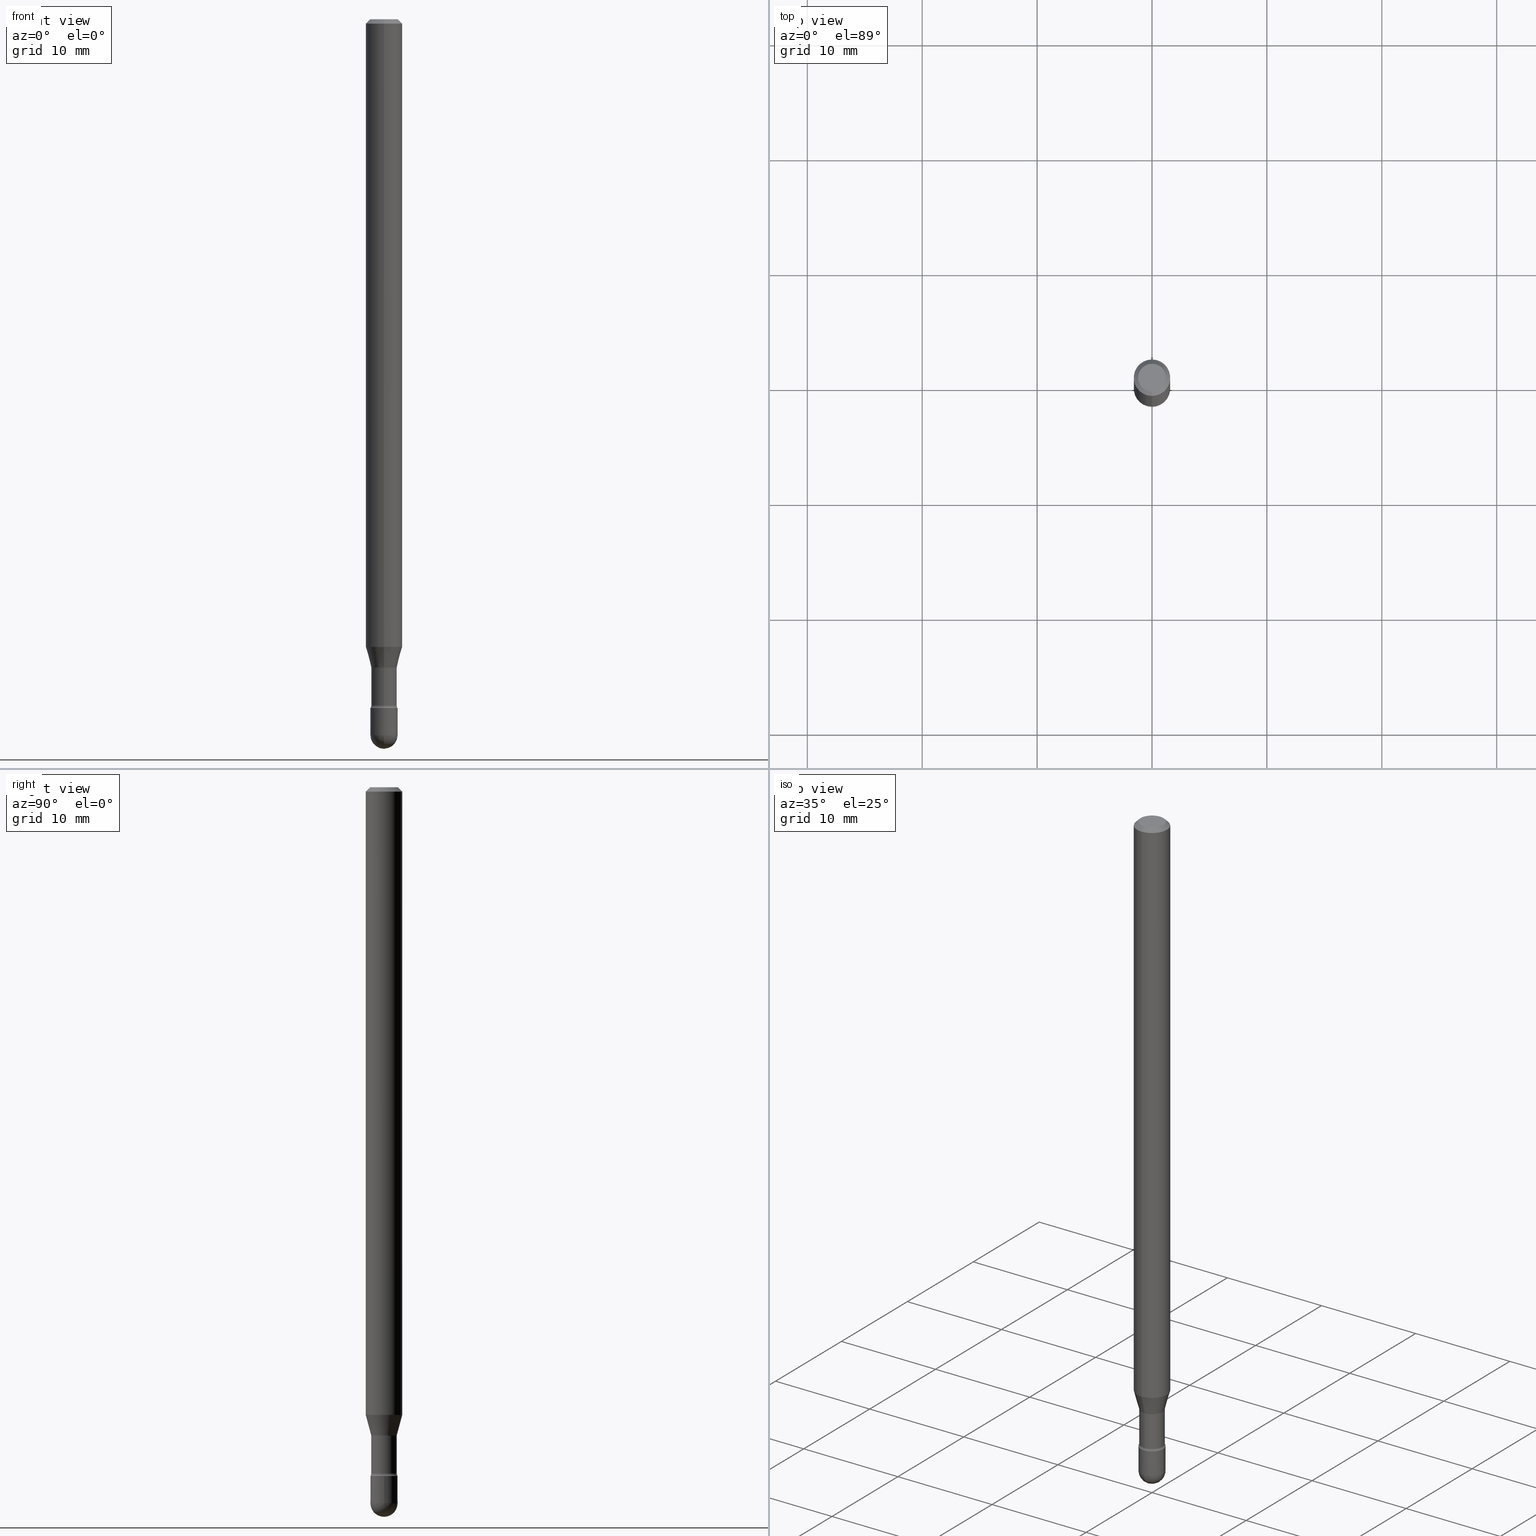
[diagram: canonical four-view strip — front | top / right | iso, engineering-drawing reading convention]
A machine part, canonical four-view strip (front | top / right | iso — engineering-drawing reading convention). The complete STEP part file that produces these views, byte-faithful:
ISO-10303-21;
HEADER;
FILE_DESCRIPTION (( 'STEP AP203' ),
    '1' );
FILE_NAME ('03826.STEP',
    '2024-04-09T20:37:51',
    ( '' ),
    ( '' ),
    'SwSTEP 2.0',
    'SolidWorks 2023',
    '' );
FILE_SCHEMA (( 'CONFIG_CONTROL_DESIGN' ));
ENDSEC;

DATA;
#1 = EDGE_CURVE ( 'NONE', #100, #345, #444, .T. ) ;
#2 = DIRECTION ( 'NONE',  ( -2.445467540314432280E-29, 3.491483151642043076E-15, 1.000000000000000000 ) ) ;
#3 = CARTESIAN_POINT ( 'NONE',  ( 0.04649999999999999967, -8.564603724182234141E-15, -2.359999999999999876 ) ) ;
#4 = VERTEX_POINT ( 'NONE', #102 ) ;
#5 = AXIS2_PLACEMENT_3D ( 'NONE', #516, #85, #255 ) ;
#6 = LOCAL_TIME ( 16, 37, 51.00000000000000000, #280 ) ;
#7 = CARTESIAN_POINT ( 'NONE',  ( 4.170885858912331081E-16, 0.05869999999999224449, -2.222974787463811275 ) ) ;
#8 = CARTESIAN_POINT ( 'NONE',  ( 3.668201310471668669E-31, -5.237224727463093505E-17, -0.01500000000000008271 ) ) ;
#9 = CARTESIAN_POINT ( 'NONE',  ( 6.115660277085183893E-29, -8.725856043299847054E-15, -2.500000000000000000 ) ) ;
#10 = EDGE_LOOP ( 'NONE', ( #402, #564, #320, #556 ) ) ;
#11 = ORIENTED_EDGE ( 'NONE', *, *, #428, .T. ) ;
#12 = FACE_OUTER_BOUND ( 'NONE', #163, .T. ) ;
#13 = CARTESIAN_POINT ( 'NONE',  ( 5.999957715975233376E-29, -8.566349464851658011E-15, -2.453500000000000014 ) ) ;
#14 = VERTEX_POINT ( 'NONE', #181 ) ;
#15 = CIRCLE ( 'NONE', #553, 0.04649999999999999967 ) ;
#16 = PRODUCT_DEFINITION_SHAPE ( 'NONE', 'NONE',  #522 ) ;
#17 = FACE_OUTER_BOUND ( 'NONE', #312, .T. ) ;
#18 = ADVANCED_FACE ( 'NONE', ( #272 ), #229, .T. ) ;
#19 = DIRECTION ( 'NONE',  ( -6.982962677686266711E-15, -1.000000000000000000, 5.874941921858630857E-15 ) ) ;
#20 = ORIENTED_EDGE ( 'NONE', *, *, #551, .T. ) ;
#21 = EDGE_LOOP ( 'NONE', ( #313, #238, #489, #165, #503 ) ) ;
#22 = ORIENTED_EDGE ( 'NONE', *, *, #259, .T. ) ;
#23 = VERTEX_POINT ( 'NONE', #236 ) ;
#24 = ORIENTED_EDGE ( 'NONE', *, *, #409, .T. ) ;
#25 = ORIENTED_EDGE ( 'NONE', *, *, #138, .F. ) ;
#26 = AXIS2_PLACEMENT_3D ( 'NONE', #7, #43, #270 ) ;
#27 = AXIS2_PLACEMENT_3D ( 'NONE', #96, #178, #134 ) ;
#28 = CALENDAR_DATE ( 2024, 9, 4 ) ;
#29 = CARTESIAN_POINT ( 'NONE',  ( 0.000000000000000000, 0.000000000000000000, 0.000000000000000000 ) ) ;
#30 = DIRECTION ( 'NONE',  ( 1.839019923739600315E-15, 0.2588190451025249583, 0.9659258262890670910 ) ) ;
#31 = PERSON_AND_ORGANIZATION_ROLE ( 'classification_officer' ) ;
#32 = CARTESIAN_POINT ( 'NONE',  ( 5.999957715975233376E-29, -8.566349464851658011E-15, -2.453500000000000014 ) ) ;
#33 = ADVANCED_FACE ( 'NONE', ( #17 ), #310, .F. ) ;
#34 = DIRECTION ( 'NONE',  ( 2.445467540314432280E-29, -3.491483151642043076E-15, -1.000000000000000000 ) ) ;
#35 = COORDINATED_UNIVERSAL_TIME_OFFSET ( 5, 0, .BEHIND. ) ;
#36 = CARTESIAN_POINT ( 'NONE',  ( 5.749961874035678454E-29, -8.209430170231729994E-15, -2.351273030308291379 ) ) ;
#37 = AXIS2_PLACEMENT_3D ( 'NONE', #32, #419, #332 ) ;
#38 = EDGE_LOOP ( 'NONE', ( #116, #108, #441, #440 ) ) ;
#39 = FACE_OUTER_BOUND ( 'NONE', #110, .T. ) ;
#40 = DIRECTION ( 'NONE',  ( -2.445467540314432280E-29, 3.491483151642042681E-15, 1.000000000000000000 ) ) ;
#41 = CARTESIAN_POINT ( 'NONE',  ( 3.791140294342164114E-16, 0.04421111260565621648, -2.219092501787273353 ) ) ;
#42 = EDGE_CURVE ( 'NONE', #487, #183, #482, .T. ) ;
#43 = DIRECTION ( 'NONE',  ( 1.000000000000000000, -7.105427357601001070E-15, 4.926315530742466020E-29 ) ) ;
#44 = DIRECTION ( 'NONE',  ( -6.982962677686265922E-15, -1.000000000000000000, 4.370956789862821150E-15 ) ) ;
#45 = DIRECTION ( 'NONE',  ( -2.445467540314432280E-29, 3.491483151642042681E-15, 1.000000000000000000 ) ) ;
#46 = ORIENTED_EDGE ( 'NONE', *, *, #466, .F. ) ;
#47 = AXIS2_PLACEMENT_3D ( 'NONE', #532, #93, #307 ) ;
#48 = EDGE_CURVE ( 'NONE', #528, #487, #67, .T. ) ;
#49 = CARTESIAN_POINT ( 'NONE',  ( 0.000000000000000000, 0.000000000000000000, 0.000000000000000000 ) ) ;
#50 = EDGE_LOOP ( 'NONE', ( #54, #400, #186, #323 ) ) ;
#51 = CARTESIAN_POINT ( 'NONE',  ( -0.04649999999999999967, -8.072720340132295025E-15, -2.359999999999999876 ) ) ;
#52 = DIRECTION ( 'NONE',  ( 1.000000000000000000, -6.982962677686280121E-15, 0.000000000000000000 ) ) ;
#53 = EDGE_LOOP ( 'NONE', ( #271, #296, #24, #443 ) ) ;
#54 = ORIENTED_EDGE ( 'NONE', *, *, #318, .T. ) ;
#55 = ORIENTED_EDGE ( 'NONE', *, *, #358, .F. ) ;
#56 = CIRCLE ( 'NONE', #26, 0.01500000000000002720 ) ;
#57 = ORIENTED_EDGE ( 'NONE', *, *, #1, .T. ) ;
#58 = CIRCLE ( 'NONE', #80, 0.01500000000000002720 ) ;
#59 = CYLINDRICAL_SURFACE ( 'NONE', #420, 0.04649999999999999967 ) ;
#60 = LINE ( 'NONE', #235, #401 ) ;
#61 = DIRECTION ( 'NONE',  ( 1.000000000000000000, -6.982962677686280121E-15, 0.000000000000000000 ) ) ;
#62 = CARTESIAN_POINT ( 'NONE',  ( 2.023543652350205589E-45, -2.889104343326665889E-31, -8.274694596359777069E-17 ) ) ;
#63 = VERTEX_POINT ( 'NONE', #496 ) ;
#64 = LENGTH_MEASURE_WITH_UNIT ( LENGTH_MEASURE( 0.02539999999999999897 ), #185 );
#65 = CALENDAR_DATE ( 2024, 9, 4 ) ;
#66 = ORIENTED_EDGE ( 'NONE', *, *, #121, .T. ) ;
#67 = CIRCLE ( 'NONE', #491, 0.04649999999999999967 ) ;
#68 = CIRCLE ( 'NONE', #292, 0.04649999999999995109 ) ;
#69 = ADVANCED_FACE ( 'NONE', ( #477 ), #537, .T. ) ;
#70 = LINE ( 'NONE', #506, #133 ) ;
#71 = ORIENTED_EDGE ( 'NONE', *, *, #299, .F. ) ;
#72 = LINE ( 'NONE', #243, #430 ) ;
#73 = PERSON_AND_ORGANIZATION_ROLE ( 'design_owner' ) ;
#74 = DIRECTION ( 'NONE',  ( -2.445467540314432280E-29, 3.491483151642043076E-15, 1.000000000000000000 ) ) ;
#75 = DATE_AND_TIME ( #65, #6 ) ;
#76 = PERSON_AND_ORGANIZATION_ROLE ( 'creator' ) ;
#77 = DIRECTION ( 'NONE',  ( -2.445467540314432280E-29, 3.491483151642043076E-15, 1.000000000000000000 ) ) ;
#78 = EDGE_CURVE ( 'NONE', #359, #63, #530, .T. ) ;
#79 = CIRCLE ( 'NONE', #389, 0.04421111260566396722 ) ;
#80 = AXIS2_PLACEMENT_3D ( 'NONE', #203, #546, #509 ) ;
#81 = APPROVAL_STATUS ( 'not_yet_approved' ) ;
#82 = CARTESIAN_POINT ( 'NONE',  ( -0.04649999999999999967, -8.072720340132295025E-15, -2.453500000000000014 ) ) ;
#83 = APPLICATION_PROTOCOL_DEFINITION ( 'international standard', 'config_control_design', 1994, #346 ) ;
#84 = VERTEX_POINT ( 'NONE', #319 ) ;
#85 = DIRECTION ( 'NONE',  ( -1.000000000000000000, 6.982962677686265922E-15, -4.883557194083111780E-29 ) ) ;
#86 = CC_DESIGN_DATE_AND_TIME_ASSIGNMENT ( #370, #462, ( #354 ) ) ;
#87 = DIRECTION ( 'NONE',  ( 1.000000000000000000, -6.982962677686260400E-15, 0.000000000000000000 ) ) ;
#88 = CIRCLE ( 'NONE', #145, 0.01499999999999999424 ) ;
#89 = ADVANCED_FACE ( 'NONE', ( #104 ), #380, .F. ) ;
#90 = CARTESIAN_POINT ( 'NONE',  ( 5.259803155794532957E-29, -7.509612700501841428E-15, -2.150837444817705446 ) ) ;
#91 = DIRECTION ( 'NONE',  ( -2.445467540314432280E-29, 3.491483151642042681E-15, 1.000000000000000000 ) ) ;
#92 = DIRECTION ( 'NONE',  ( -2.445467540314432280E-29, 3.491483151642043076E-15, 1.000000000000000000 ) ) ;
#93 = DIRECTION ( 'NONE',  ( -2.445468806185136597E-29, 3.491481338843145583E-15, 1.000000000000000000 ) ) ;
#94 = CARTESIAN_POINT ( 'NONE',  ( 5.426718682075923178E-29, -7.747924081925454793E-15, -2.219092501787273353 ) ) ;
#95 = DIRECTION ( 'NONE',  ( -6.982962677686265922E-15, -1.000000000000000000, 3.491483151642043076E-15 ) ) ;
#96 = CARTESIAN_POINT ( 'NONE',  ( 5.426718682075923178E-29, -7.747924081925454793E-15, -2.219092501787273353 ) ) ;
#97 = LINE ( 'NONE', #268, #467 ) ;
#98 = CARTESIAN_POINT ( 'NONE',  ( 0.04649999999999999967, -3.247077645124114474E-16, 2.267422200745110326E-30 ) ) ;
#99 = ORIENTED_EDGE ( 'NONE', *, *, #300, .T. ) ;
#100 = VERTEX_POINT ( 'NONE', #266 ) ;
#101 = CARTESIAN_POINT ( 'NONE',  ( 3.840629472727447874E-16, 0.04749999999999999362, -2.485923956665947867E-16 ) ) ;
#102 = CARTESIAN_POINT ( 'NONE',  ( -3.051554690148354365E-16, -0.04370000000000775348, -2.222974787463810831 ) ) ;
#103 = ADVANCED_FACE ( 'NONE', ( #435 ), #59, .T. ) ;
#104 = FACE_OUTER_BOUND ( 'NONE', #135, .T. ) ;
#105 = CIRCLE ( 'NONE', #239, 0.04421111260566396722 ) ;
#106 = CIRCLE ( 'NONE', #493, 0.06250000000000000000 ) ;
#107 = CARTESIAN_POINT ( 'NONE',  ( 5.771303395142059856E-29, -8.239900237875220901E-15, -2.359999999999999876 ) ) ;
#108 = ORIENTED_EDGE ( 'NONE', *, *, #358, .T. ) ;
#109 = DIRECTION ( 'NONE',  ( -6.982962677686266711E-15, -1.000000000000000000, 6.251368406554378572E-15 ) ) ;
#110 = EDGE_LOOP ( 'NONE', ( #226, #542, #483, #279 ) ) ;
#111 = EDGE_CURVE ( 'NONE', #241, #84, #79, .T. ) ;
#112 = DIRECTION ( 'NONE',  ( -2.445467540314432280E-29, 3.491483151642043076E-15, 1.000000000000000000 ) ) ;
#113 = VERTEX_POINT ( 'NONE', #101 ) ;
#114 = CONICAL_SURFACE ( 'NONE', #429, 0.06250000000000000000, 0.7853981633974483900 ) ;
#115 = DATE_AND_TIME ( #117, #415 ) ;
#116 = ORIENTED_EDGE ( 'NONE', *, *, #449, .F. ) ;
#117 = CALENDAR_DATE ( 2024, 9, 4 ) ;
#118 = EDGE_CURVE ( 'NONE', #241, #14, #56, .T. ) ;
#119 = PERSON_AND_ORGANIZATION ( #127, #510 ) ;
#120 = AXIS2_PLACEMENT_3D ( 'NONE', #151, #327, #109 ) ;
#121 = EDGE_CURVE ( 'NONE', #84, #241, #105, .T. ) ;
#122 = DIRECTION ( 'NONE',  ( -6.982962677686266711E-15, -1.000000000000000000, 6.179098042681425901E-15 ) ) ;
#123 = AXIS2_PLACEMENT_3D ( 'NONE', #62, #237, #502 ) ;
#124 = DIRECTION ( 'NONE',  ( 1.000000000000000000, -6.982962677686280121E-15, 0.000000000000000000 ) ) ;
#125 = ADVANCED_FACE ( 'NONE', ( #392 ), #131, .F. ) ;
#126 = DIRECTION ( 'NONE',  ( -6.982962677686266711E-15, -1.000000000000000000, 6.251368406554378572E-15 ) ) ;
#127 = PERSON ( 'UNSPECIFIED', 'UNSPECIFIED', 'UNSPECIFIED', ('UNSPECIFIED'), ('UNSPECIFIED'), ('UNSPECIFIED') ) ;
#128 = DIRECTION ( 'NONE',  ( -6.982962677686265922E-15, -1.000000000000000000, 4.370956789862821150E-15 ) ) ;
#129 = ORIENTED_EDGE ( 'NONE', *, *, #412, .T. ) ;
#130 = CARTESIAN_POINT ( 'NONE',  ( 0.000000000000000000, 0.000000000000000000, 0.000000000000000000 ) ) ;
#131 = TOROIDAL_SURFACE ( 'NONE', #371, 0.05870000000000000911, 0.01499999999999999771 ) ;
#132 = DIRECTION ( 'NONE',  ( 6.982962677686265922E-15, 1.000000000000000000, -3.491483151642042681E-15 ) ) ;
#133 = VECTOR ( 'NONE', #450, 39.37007874015748143 ) ;
#134 = DIRECTION ( 'NONE',  ( -6.982962677686266711E-15, -1.000000000000000000, 6.179098042681425901E-15 ) ) ;
#135 = EDGE_LOOP ( 'NONE', ( #210, #336, #234, #179 ) ) ;
#136 = ORIENTED_EDGE ( 'NONE', *, *, #551, .F. ) ;
#137 = EDGE_LOOP ( 'NONE', ( #57, #11, #534, #410, #324 ) ) ;
#138 = EDGE_CURVE ( 'NONE', #143, #359, #260, .T. ) ;
#139 = ORIENTED_EDGE ( 'NONE', *, *, #498, .T. ) ;
#140 = DIRECTION ( 'NONE',  ( -2.445467540314432280E-29, 3.491483151642043076E-15, 1.000000000000000000 ) ) ;
#141 = ORIENTED_EDGE ( 'NONE', *, *, #164, .T. ) ;
#142 = ORIENTED_EDGE ( 'NONE', *, *, #484, .T. ) ;
#143 = VERTEX_POINT ( 'NONE', #265 ) ;
#144 = VECTOR ( 'NONE', #91, 39.37007874015748143 ) ;
#145 = AXIS2_PLACEMENT_3D ( 'NONE', #514, #290, #423 ) ;
#146 = ORIENTED_EDGE ( 'NONE', *, *, #405, .T. ) ;
#147 = LOCAL_TIME ( 16, 37, 51.00000000000000000, #35 ) ;
#148 = APPROVAL ( #334, 'UNSPECIFIED' ) ;
#149 = VERTEX_POINT ( 'NONE', #51 ) ;
#150 = SHAPE_DEFINITION_REPRESENTATION ( #16, #173 ) ;
#151 = CARTESIAN_POINT ( 'NONE',  ( 5.436212685680124497E-29, -7.761479016954948224E-15, -2.222974787463811275 ) ) ;
#152 = PERSON_AND_ORGANIZATION ( #127, #510 ) ;
#153 = DIRECTION ( 'NONE',  ( -2.445467540314432280E-29, 3.491483151642043076E-15, 1.000000000000000000 ) ) ;
#154 = AXIS2_PLACEMENT_3D ( 'NONE', #301, #92, #432 ) ;
#155 = PERSON_AND_ORGANIZATION_ROLE ( 'creator' ) ;
#156 = DIRECTION ( 'NONE',  ( 1.000000000000000000, -6.982962677686280121E-15, 0.000000000000000000 ) ) ;
#157 = DIRECTION ( 'NONE',  ( -2.445467540314432280E-29, 3.491483151642042681E-15, 1.000000000000000000 ) ) ;
#158 = SPHERICAL_SURFACE ( 'NONE', #5, 0.04649999999999995109 ) ;
#159 = CARTESIAN_POINT ( 'NONE',  ( 4.170885858912363128E-16, 0.05869999999999180040, -2.351273030308291823 ) ) ;
#160 = AXIS2_PLACEMENT_3D ( 'NONE', #269, #140, #366 ) ;
#161 = CIRCLE ( 'NONE', #413, 0.04649999999999999967 ) ;
#162 = DIRECTION ( 'NONE',  ( -2.445467540314432280E-29, 3.491483151642043076E-15, 1.000000000000000000 ) ) ;
#163 = EDGE_LOOP ( 'NONE', ( #66, #361, #437, #396 ) ) ;
#164 = EDGE_CURVE ( 'NONE', #14, #4, #284, .T. ) ;
#165 = ORIENTED_EDGE ( 'NONE', *, *, #42, .T. ) ;
#166 = AXIS2_PLACEMENT_3D ( 'NONE', #355, #403, #439 ) ;
#167 = AXIS2_PLACEMENT_3D ( 'NONE', #227, #527, #126 ) ;
#168 = CARTESIAN_POINT ( 'NONE',  ( 5.999957715975233376E-29, -8.566349464851658011E-15, -2.453500000000000014 ) ) ;
#169 = VECTOR ( 'NONE', #397, 39.37007874015748143 ) ;
#170 = APPROVAL_PERSON_ORGANIZATION ( #417, #177, #555 ) ;
#171 = EDGE_LOOP ( 'NONE', ( #486, #20, #146, #291 ) ) ;
#172 = CYLINDRICAL_SURFACE ( 'NONE', #455, 0.06250000000000000000 ) ;
#173 = ADVANCED_BREP_SHAPE_REPRESENTATION ( '03826', ( #311, #504, #298 ), #182 ) ;
#174 = DIRECTION ( 'NONE',  ( 2.445467540314432280E-29, -3.491483151642043076E-15, -1.000000000000000000 ) ) ;
#175 = FACE_OUTER_BOUND ( 'NONE', #137, .T. ) ;
#176 = CARTESIAN_POINT ( 'NONE',  ( 4.440892098501153712E-16, 0.06249999999999251293, -2.150837444817705890 ) ) ;
#177 = APPROVAL ( #372, 'UNSPECIFIED' ) ;
#178 = DIRECTION ( 'NONE',  ( -2.445467540314432280E-29, 3.491483151642043076E-15, 1.000000000000000000 ) ) ;
#179 = ORIENTED_EDGE ( 'NONE', *, *, #479, .T. ) ;
#180 = AXIS2_PLACEMENT_3D ( 'NONE', #247, #375, #156 ) ;
#181 = CARTESIAN_POINT ( 'NONE',  ( 3.105071755272212396E-16, 0.04369999999999223117, -2.222974787463811275 ) ) ;
#182 =( GEOMETRIC_REPRESENTATION_CONTEXT ( 3 ) GLOBAL_UNCERTAINTY_ASSIGNED_CONTEXT ( ( #431 ) ) GLOBAL_UNIT_ASSIGNED_CONTEXT ( ( #411, #329, #446 ) ) REPRESENTATION_CONTEXT ( 'NONE', 'WORKASPACE' ) );
#183 = VERTEX_POINT ( 'NONE', #3 ) ;
#184 = EDGE_CURVE ( 'NONE', #345, #528, #461, .T. ) ;
#185 =( LENGTH_UNIT ( ) NAMED_UNIT ( * ) SI_UNIT ( $, .METRE. ) );
#186 = ORIENTED_EDGE ( 'NONE', *, *, #479, .F. ) ;
#187 = DIRECTION ( 'NONE',  ( 2.445467540314432280E-29, -3.491483151642042681E-15, -1.000000000000000000 ) ) ;
#188 = DIMENSIONAL_EXPONENTS ( 1.000000000000000000, 0.000000000000000000, 0.000000000000000000, 0.000000000000000000, 0.000000000000000000, 0.000000000000000000, 0.000000000000000000 ) ;
#189 = CARTESIAN_POINT ( 'NONE',  ( 5.771306382596922099E-29, -8.239895959669823433E-15, -2.359999999999999876 ) ) ;
#190 = CARTESIAN_POINT ( 'NONE',  ( 5.436215499678784243E-29, -7.761474987148704232E-15, -2.222974787463811275 ) ) ;
#191 = CARTESIAN_POINT ( 'NONE',  ( 3.105071755271637513E-16, 0.04370000000000000273, 3.254955851644887597E-16 ) ) ;
#192 = EDGE_LOOP ( 'NONE', ( #282, #533, #141, #46 ) ) ;
#193 = ORIENTED_EDGE ( 'NONE', *, *, #512, .F. ) ;
#194 = DIRECTION ( 'NONE',  ( -2.445467540314432280E-29, 3.491483151642043076E-15, 1.000000000000000000 ) ) ;
#195 = AXIS2_PLACEMENT_3D ( 'NONE', #36, #456, #494 ) ;
#196 = EDGE_LOOP ( 'NONE', ( #71, #317 ) ) ;
#197 = CC_DESIGN_SECURITY_CLASSIFICATION ( #354, ( #367 ) ) ;
#198 = DIRECTION ( 'NONE',  ( 1.000000000000000000, 0.000000000000000000, 0.000000000000000000 ) ) ;
#199 = DIRECTION ( 'NONE',  ( -6.982962677686265922E-15, -1.000000000000000000, 3.491483151642043076E-15 ) ) ;
#200 = EDGE_LOOP ( 'NONE', ( #55, #308, #387, #526 ) ) ;
#201 = AXIS2_PLACEMENT_3D ( 'NONE', #190, #545, #95 ) ;
#202 = EDGE_CURVE ( 'NONE', #360, #63, #97, .T. ) ;
#203 = CARTESIAN_POINT ( 'NONE',  ( -4.098999091801294470E-16, -0.05870000000000776680, -2.222974787463810831 ) ) ;
#204 = CARTESIAN_POINT ( 'NONE',  ( 5.999957715975233376E-29, -8.566349464851658011E-15, -2.453500000000000014 ) ) ;
#205 = ORIENTED_EDGE ( 'NONE', *, *, #78, .T. ) ;
#206 = CC_DESIGN_PERSON_AND_ORGANIZATION_ASSIGNMENT ( #459, #76, ( #522 ) ) ;
#207 = AXIS2_PLACEMENT_3D ( 'NONE', #130, #481, #224 ) ;
#208 = APPROVAL_PERSON_ORGANIZATION ( #508, #379, #554 ) ;
#209 = CARTESIAN_POINT ( 'NONE',  ( 5.749964850443325781E-29, -8.209425907846573526E-15, -2.351273030308291379 ) ) ;
#210 = ORIENTED_EDGE ( 'NONE', *, *, #118, .F. ) ;
#211 = CC_DESIGN_DATE_AND_TIME_ASSIGNMENT ( #115, #288, ( #522 ) ) ;
#212 = DIRECTION ( 'NONE',  ( 7.105427357601001859E-15, 1.000000000000000000, 0.000000000000000000 ) ) ;
#213 = DIRECTION ( 'NONE',  ( -6.982962677686265922E-15, -1.000000000000000000, 3.491483151642043076E-15 ) ) ;
#214 = DIRECTION ( 'NONE',  ( -1.000000000000000000, 7.105427357601001070E-15, -4.926315508542082329E-29 ) ) ;
#215 = AXIS2_PLACEMENT_3D ( 'NONE', #168, #344, #124 ) ;
#216 = TOROIDAL_SURFACE ( 'NONE', #340, 0.05870000000000000218, 0.01500000000000003240 ) ;
#217 = CARTESIAN_POINT ( 'NONE',  ( 5.426718682075923178E-29, -7.747924081925454793E-15, -2.219092501787273353 ) ) ;
#218 = VERTEX_POINT ( 'NONE', #434 ) ;
#219 = DIRECTION ( 'NONE',  ( -6.982962677686266711E-15, -1.000000000000000000, 3.491483151642043076E-15 ) ) ;
#220 = EDGE_CURVE ( 'NONE', #113, #218, #562, .T. ) ;
#221 = VERTEX_POINT ( 'NONE', #395 ) ;
#222 = CARTESIAN_POINT ( 'NONE',  ( -1.169113584055446105E-44, 1.669184350826100908E-30, 4.780733988912460139E-16 ) ) ;
#223 = VERTEX_POINT ( 'NONE', #9 ) ;
#224 = DIRECTION ( 'NONE',  ( 1.000000000000000000, -6.982962677686267499E-15, 4.876176775795936353E-29 ) ) ;
#225 = ADVANCED_FACE ( 'NONE', ( #175 ), #350, .T. ) ;
#226 = ORIENTED_EDGE ( 'NONE', *, *, #202, .F. ) ;
#227 = CARTESIAN_POINT ( 'NONE',  ( 5.436212685680124497E-29, -7.761479016954948224E-15, -2.222974787463811275 ) ) ;
#228 = CLOSED_SHELL ( 'NONE', ( #225, #460, #18, #262, #103 ) ) ;
#229 = PLANE ( 'NONE',  #166 ) ;
#230 = TOROIDAL_SURFACE ( 'NONE', #433, 0.05870000000000000911, 0.01499999999999999771 ) ;
#231 = CC_DESIGN_APPROVAL ( #177, ( #522 ) ) ;
#232 = VERTEX_POINT ( 'NONE', #399 ) ;
#233 = DIRECTION ( 'NONE',  ( -6.982962677686266711E-15, -1.000000000000000000, 6.179098042681425901E-15 ) ) ;
#234 = ORIENTED_EDGE ( 'NONE', *, *, #466, .T. ) ;
#235 = CARTESIAN_POINT ( 'NONE',  ( -4.287811248607203282E-16, -0.06250000000000005551, -0.01499999999999986587 ) ) ;
#236 = CARTESIAN_POINT ( 'NONE',  ( -3.051554690148324289E-16, -0.04370000000000823226, -2.351273030308290934 ) ) ;
#237 = DIRECTION ( 'NONE',  ( -2.445467540314432280E-29, 3.491483151642043076E-15, 1.000000000000000000 ) ) ;
#238 = ORIENTED_EDGE ( 'NONE', *, *, #184, .T. ) ;
#239 = AXIS2_PLACEMENT_3D ( 'NONE', #217, #348, #309 ) ;
#240 = CIRCLE ( 'NONE', #306, 0.04370000000000001661 ) ;
#241 = VERTEX_POINT ( 'NONE', #41 ) ;
#242 = LOCAL_TIME ( 16, 37, 51.00000000000000000, #287 ) ;
#243 = CARTESIAN_POINT ( 'NONE',  ( 3.141388490183175009E-16, 0.04421111260565621648, -2.219092501787273353 ) ) ;
#244 = CARTESIAN_POINT ( 'NONE',  ( 0.04649999999999999967, -8.727830476773153796E-15, -2.453500000000000014 ) ) ;
#245 = APPLICATION_PROTOCOL_DEFINITION ( 'international standard', 'config_control_design', 1994, #453 ) ;
#246 = ADVANCED_FACE ( 'NONE', ( #521 ), #114, .T. ) ;
#247 = CARTESIAN_POINT ( 'NONE',  ( 5.999957715975233376E-29, -8.566349464851658011E-15, -2.453500000000000014 ) ) ;
#248 = PERSON_AND_ORGANIZATION_ROLE ( 'design_supplier' ) ;
#249 = FACE_OUTER_BOUND ( 'NONE', #200, .T. ) ;
#250 = CIRCLE ( 'NONE', #123, 0.04749999999999999362 ) ;
#251 = CONICAL_SURFACE ( 'NONE', #27, 0.04421111260566396722, 0.2617993877991502960 ) ;
#252 = DATE_AND_TIME ( #549, #147 ) ;
#253 = DIRECTION ( 'NONE',  ( -2.445467540314432280E-29, 3.491483151642043076E-15, 1.000000000000000000 ) ) ;
#254 = EDGE_CURVE ( 'NONE', #487, #100, #351, .T. ) ;
#255 = DIRECTION ( 'NONE',  ( 6.982962677686265922E-15, 1.000000000000000000, -5.874941921858636379E-15 ) ) ;
#256 = CIRCLE ( 'NONE', #352, 0.04649999999999995109 ) ;
#257 = CC_DESIGN_PERSON_AND_ORGANIZATION_ASSIGNMENT ( #376, #155, ( #367 ) ) ;
#258 = CARTESIAN_POINT ( 'NONE',  ( 5.999957715975233376E-29, -8.566349464851658011E-15, -2.453500000000000014 ) ) ;
#259 = EDGE_CURVE ( 'NONE', #23, #408, #88, .T. ) ;
#260 = LINE ( 'NONE', #386, #144 ) ;
#261 = CARTESIAN_POINT ( 'NONE',  ( -1.169113584055446105E-44, 1.669184350826100908E-30, 4.780733988912460139E-16 ) ) ;
#262 = ADVANCED_FACE ( 'NONE', ( #338 ), #158, .T. ) ;
#263 = CONICAL_SURFACE ( 'NONE', #381, 0.06250000000000000000, 0.7853981633974483900 ) ;
#264 = CARTESIAN_POINT ( 'NONE',  ( -3.304023721283863841E-16, -0.04650000000000854145, -2.453500000000000014 ) ) ;
#265 = CARTESIAN_POINT ( 'NONE',  ( -4.364351673553387171E-16, -0.06250000000000748013, -2.150837444817705002 ) ) ;
#266 = CARTESIAN_POINT ( 'NONE',  ( 3.247077645124712036E-16, 0.04649999999999141626, -2.453500000000000458 ) ) ;
#267 = CARTESIAN_POINT ( 'NONE',  ( 4.364351673553919652E-16, 0.06249999999999995143, -0.01500000000000030129 ) ) ;
#268 = CARTESIAN_POINT ( 'NONE',  ( 4.440892098500625669E-16, 0.06250000000000000000, 2.598557019136183710E-16 ) ) ;
#269 = CARTESIAN_POINT ( 'NONE',  ( 3.668201310471668669E-31, -5.237224727463093505E-17, -0.01500000000000008271 ) ) ;
#270 = DIRECTION ( 'NONE',  ( 7.105427357601001859E-15, 1.000000000000000000, 0.000000000000000000 ) ) ;
#271 = ORIENTED_EDGE ( 'NONE', *, *, #342, .F. ) ;
#272 = FACE_OUTER_BOUND ( 'NONE', #465, .T. ) ;
#273 = CIRCLE ( 'NONE', #47, 0.04649999999999999967 ) ;
#274 = PRODUCT_RELATED_PRODUCT_CATEGORY ( 'detail', '', ( #382 ) ) ;
#275 = CC_DESIGN_APPROVAL ( #148, ( #354 ) ) ;
#276 = ORIENTED_EDGE ( 'NONE', *, *, #111, .T. ) ;
#277 = DIRECTION ( 'NONE',  ( -6.982962677686266711E-15, -1.000000000000000000, 5.874941921858630857E-15 ) ) ;
#278 = DIRECTION ( 'NONE',  ( -2.445468806185136597E-29, 3.491481338843145583E-15, 1.000000000000000000 ) ) ;
#279 = ORIENTED_EDGE ( 'NONE', *, *, #286, .F. ) ;
#280 = COORDINATED_UNIVERSAL_TIME_OFFSET ( 5, 0, .BEHIND. ) ;
#281 = FACE_OUTER_BOUND ( 'NONE', #53, .T. ) ;
#282 = ORIENTED_EDGE ( 'NONE', *, *, #111, .F. ) ;
#283 = CARTESIAN_POINT ( 'NONE',  ( -3.247077645123537126E-16, -0.04650000000000825001, -2.359999999999999876 ) ) ;
#284 = CIRCLE ( 'NONE', #167, 0.04369999999999999579 ) ;
#285 = AXIS2_PLACEMENT_3D ( 'NONE', #107, #112, #277 ) ;
#286 = EDGE_CURVE ( 'NONE', #63, #359, #445, .T. ) ;
#287 = COORDINATED_UNIVERSAL_TIME_OFFSET ( 5, 0, .BEHIND. ) ;
#288 = DATE_TIME_ROLE ( 'creation_date' ) ;
#289 = APPROVAL_DATE_TIME ( #513, #177 ) ;
#290 = DIRECTION ( 'NONE',  ( -1.000000000000000000, 6.982962677686265922E-15, -4.883557194083112340E-29 ) ) ;
#291 = ORIENTED_EDGE ( 'NONE', *, *, #259, .F. ) ;
#292 = AXIS2_PLACEMENT_3D ( 'NONE', #204, #559, #339 ) ;
#293 = FACE_OUTER_BOUND ( 'NONE', #192, .T. ) ;
#294 = CARTESIAN_POINT ( 'NONE',  ( 3.668201310471668669E-31, -5.237224727463093505E-17, -0.01500000000000008271 ) ) ;
#295 = DESIGN_CONTEXT ( 'detailed design', #346, 'design' ) ;
#296 = ORIENTED_EDGE ( 'NONE', *, *, #384, .T. ) ;
#297 = VECTOR ( 'NONE', #448, 39.37007874015748143 ) ;
#298 = AXIS2_PLACEMENT_3D ( 'NONE', #29, #547, #198 ) ;
#299 = EDGE_CURVE ( 'NONE', #408, #221, #161, .T. ) ;
#300 = EDGE_CURVE ( 'NONE', #84, #143, #557, .T. ) ;
#301 = CARTESIAN_POINT ( 'NONE',  ( -1.169113584055446105E-44, 1.669184350826100908E-30, 4.780733988912460139E-16 ) ) ;
#302 = ORIENTED_EDGE ( 'NONE', *, *, #426, .F. ) ;
#303 = CARTESIAN_POINT ( 'NONE',  ( 2.023543652350205589E-45, -2.889104343326665889E-31, -8.274694596359777069E-17 ) ) ;
#304 = ORIENTED_EDGE ( 'NONE', *, *, #220, .T. ) ;
#305 = EDGE_CURVE ( 'NONE', #149, #183, #15, .T. ) ;
#306 = AXIS2_PLACEMENT_3D ( 'NONE', #565, #385, #314 ) ;
#307 = DIRECTION ( 'NONE',  ( 1.000000000000000000, -6.982962677686260400E-15, 0.000000000000000000 ) ) ;
#308 = ORIENTED_EDGE ( 'NONE', *, *, #449, .T. ) ;
#309 = DIRECTION ( 'NONE',  ( -6.982962677686266711E-15, -1.000000000000000000, 6.179098042681425901E-15 ) ) ;
#310 = PLANE ( 'NONE',  #552 ) ;
#311 = MANIFOLD_SOLID_BREP ( 'Body-Move/Copy2[1]', #228 ) ;
#312 = EDGE_LOOP ( 'NONE', ( #304, #142 ) ) ;
#313 = ORIENTED_EDGE ( 'NONE', *, *, #428, .F. ) ;
#314 = DIRECTION ( 'NONE',  ( -6.982962677686265133E-15, -1.000000000000000000, 6.251368406554375417E-15 ) ) ;
#315 = ORIENTED_EDGE ( 'NONE', *, *, #202, .T. ) ;
#316 = DIRECTION ( 'NONE',  ( -2.445467540314432280E-29, 3.491483151642043076E-15, 1.000000000000000000 ) ) ;
#317 = ORIENTED_EDGE ( 'NONE', *, *, #405, .F. ) ;
#318 = EDGE_CURVE ( 'NONE', #23, #232, #240, .T. ) ;
#319 = CARTESIAN_POINT ( 'NONE',  ( -3.087245492642820257E-16, -0.04421111260567172491, -2.219092501787272909 ) ) ;
#320 = ORIENTED_EDGE ( 'NONE', *, *, #458, .T. ) ;
#321 = AXIS2_PLACEMENT_3D ( 'NONE', #538, #194, #529 ) ;
#322 = CIRCLE ( 'NONE', #333, 0.06250000000000000000 ) ;
#323 = ORIENTED_EDGE ( 'NONE', *, *, #409, .F. ) ;
#324 = ORIENTED_EDGE ( 'NONE', *, *, #254, .T. ) ;
#325 = DIRECTION ( 'NONE',  ( -2.445468806185136877E-29, 3.491481338843145188E-15, 1.000000000000000000 ) ) ;
#326 = EDGE_LOOP ( 'NONE', ( #136, #539, #22, #536 ) ) ;
#327 = DIRECTION ( 'NONE',  ( -2.445467540314432280E-29, 3.491483151642043076E-15, 1.000000000000000000 ) ) ;
#328 = ADVANCED_FACE ( 'NONE', ( #407 ), #347, .T. ) ;
#329 =( NAMED_UNIT ( * ) PLANE_ANGLE_UNIT ( ) SI_UNIT ( $, .RADIAN. ) );
#330 = PLANE ( 'NONE',  #492 ) ;
#331 = APPROVAL_ROLE ( '' ) ;
#332 = DIRECTION ( 'NONE',  ( 6.982962677686265922E-15, 1.000000000000000000, -5.874941921858636379E-15 ) ) ;
#333 = AXIS2_PLACEMENT_3D ( 'NONE', #90, #74, #44 ) ;
#334 = APPROVAL_STATUS ( 'not_yet_approved' ) ;
#335 = COORDINATED_UNIVERSAL_TIME_OFFSET ( 5, 0, .BEHIND. ) ;
#336 = ORIENTED_EDGE ( 'NONE', *, *, #121, .F. ) ;
#337 = CARTESIAN_POINT ( 'NONE',  ( -3.087245492642820257E-16, -0.04421111260567172491, -2.219092501787272909 ) ) ;
#338 = FACE_OUTER_BOUND ( 'NONE', #38, .T. ) ;
#339 = DIRECTION ( 'NONE',  ( 6.982962677686265133E-15, 1.000000000000000000, 0.000000000000000000 ) ) ;
#340 = AXIS2_PLACEMENT_3D ( 'NONE', #500, #316, #199 ) ;
#341 = DIRECTION ( 'NONE',  ( -6.982962677686265922E-15, -1.000000000000000000, 3.483106191921935554E-15 ) ) ;
#342 = EDGE_CURVE ( 'NONE', #232, #14, #497, .T. ) ;
#343 = ADVANCED_FACE ( 'NONE', ( #463 ), #230, .F. ) ;
#344 = DIRECTION ( 'NONE',  ( -2.445468806185136597E-29, 3.491481338843145583E-15, 1.000000000000000000 ) ) ;
#345 = VERTEX_POINT ( 'NONE', #82 ) ;
#346 = APPLICATION_CONTEXT ( 'configuration controlled 3d designs of mechanical parts and assemblies' ) ;
#347 = CYLINDRICAL_SURFACE ( 'NONE', #154, 0.06250000000000000000 ) ;
#348 = DIRECTION ( 'NONE',  ( -2.445467540314432280E-29, 3.491483151642043076E-15, 1.000000000000000000 ) ) ;
#349 = CYLINDRICAL_SURFACE ( 'NONE', #390, 0.04370000000000000273 ) ;
#350 = CYLINDRICAL_SURFACE ( 'NONE', #207, 0.04649999999999999967 ) ;
#351 = CIRCLE ( 'NONE', #180, 0.04649999999999999967 ) ;
#352 = AXIS2_PLACEMENT_3D ( 'NONE', #258, #214, #388 ) ;
#353 = ORIENTED_EDGE ( 'NONE', *, *, #458, .F. ) ;
#354 = SECURITY_CLASSIFICATION ( '', '', #515 ) ;
#355 = CARTESIAN_POINT ( 'NONE',  ( 5.771306382596922099E-29, -8.239895959669823433E-15, -2.359999999999999876 ) ) ;
#356 = ORIENTED_EDGE ( 'NONE', *, *, #442, .T. ) ;
#357 = CARTESIAN_POINT ( 'NONE',  ( 5.999957715975233376E-29, -8.566349464851658011E-15, -2.453500000000000014 ) ) ;
#358 = EDGE_CURVE ( 'NONE', #223, #100, #68, .T. ) ;
#359 = VERTEX_POINT ( 'NONE', #517 ) ;
#360 = VERTEX_POINT ( 'NONE', #176 ) ;
#361 = ORIENTED_EDGE ( 'NONE', *, *, #426, .T. ) ;
#362 = EDGE_LOOP ( 'NONE', ( #404, #129, #205, #353 ) ) ;
#363 = LINE ( 'NONE', #543, #468 ) ;
#364 = ADVANCED_FACE ( 'NONE', ( #406 ), #524, .T. ) ;
#365 = AXIS2_PLACEMENT_3D ( 'NONE', #159, #519, #212 ) ;
#366 = DIRECTION ( 'NONE',  ( -6.982962677686265922E-15, -1.000000000000000000, 3.483106191921935554E-15 ) ) ;
#367 = PRODUCT_DEFINITION_FORMATION_WITH_SPECIFIED_SOURCE ( 'ANY', '', #382, .NOT_KNOWN. ) ;
#368 = CARTESIAN_POINT ( 'NONE',  ( 5.771303395142059856E-29, -8.239900237875220901E-15, -2.359999999999999876 ) ) ;
#369 = DIRECTION ( 'NONE',  ( 6.982962677686265922E-15, 1.000000000000000000, -3.483106191921935554E-15 ) ) ;
#370 = DATE_AND_TIME ( #28, #242 ) ;
#371 = AXIS2_PLACEMENT_3D ( 'NONE', #438, #472, #213 ) ;
#372 = APPROVAL_STATUS ( 'not_yet_approved' ) ;
#373 = CIRCLE ( 'NONE', #120, 0.04369999999999999579 ) ;
#374 = CC_DESIGN_PERSON_AND_ORGANIZATION_ASSIGNMENT ( #119, #31, ( #354 ) ) ;
#375 = DIRECTION ( 'NONE',  ( -2.445468806185136597E-29, 3.491481338843145583E-15, 1.000000000000000000 ) ) ;
#376 = PERSON_AND_ORGANIZATION ( #127, #510 ) ;
#377 = CALENDAR_DATE ( 2024, 9, 4 ) ;
#378 = ADVANCED_FACE ( 'NONE', ( #473 ), #263, .T. ) ;
#379 = APPROVAL ( #81, 'UNSPECIFIED' ) ;
#380 = TOROIDAL_SURFACE ( 'NONE', #201, 0.05870000000000000218, 0.01500000000000003240 ) ;
#381 = AXIS2_PLACEMENT_3D ( 'NONE', #8, #174, #369 ) ;
#382 = PRODUCT ( '03826', '03826', '', ( #416 ) ) ;
#383 = APPROVAL_PERSON_ORGANIZATION ( #544, #148, #331 ) ;
#384 = EDGE_CURVE ( 'NONE', #232, #23, #541, .T. ) ;
#385 = DIRECTION ( 'NONE',  ( -2.445467540314432280E-29, 3.491483151642043076E-15, 1.000000000000000000 ) ) ;
#386 = CARTESIAN_POINT ( 'NONE',  ( -4.364351673553916201E-16, -0.06250000000000000000, 6.962910958688737061E-16 ) ) ;
#387 = ORIENTED_EDGE ( 'NONE', *, *, #184, .F. ) ;
#388 = DIRECTION ( 'NONE',  ( -7.105427357601001070E-15, -1.000000000000000000, 0.000000000000000000 ) ) ;
#389 = AXIS2_PLACEMENT_3D ( 'NONE', #94, #485, #122 ) ;
#390 = AXIS2_PLACEMENT_3D ( 'NONE', #222, #475, #471 ) ;
#391 = CC_DESIGN_PERSON_AND_ORGANIZATION_ASSIGNMENT ( #511, #73, ( #382 ) ) ;
#392 = FACE_OUTER_BOUND ( 'NONE', #171, .T. ) ;
#393 = CARTESIAN_POINT ( 'NONE',  ( 5.426718682075923178E-29, -7.747924081925454793E-15, -2.219092501787273353 ) ) ;
#394 = DIRECTION ( 'NONE',  ( -6.982962677686265922E-15, -1.000000000000000000, 3.491483151642042287E-15 ) ) ;
#395 = CARTESIAN_POINT ( 'NONE',  ( 3.304023721285042695E-16, 0.04649999999999177014, -2.360000000000000320 ) ) ;
#396 = ORIENTED_EDGE ( 'NONE', *, *, #300, .F. ) ;
#397 = DIRECTION ( 'NONE',  ( 4.937700262164548042E-15, 0.7071067811865451302, -0.7071067811865499042 ) ) ;
#398 = ORIENTED_EDGE ( 'NONE', *, *, #78, .F. ) ;
#399 = CARTESIAN_POINT ( 'NONE',  ( 3.204547738278628285E-16, 0.04369999999999180790, -2.351273030308291823 ) ) ;
#400 = ORIENTED_EDGE ( 'NONE', *, *, #342, .T. ) ;
#401 = VECTOR ( 'NONE', #501, 39.37007874015748143 ) ;
#402 = ORIENTED_EDGE ( 'NONE', *, *, #412, .F. ) ;
#403 = DIRECTION ( 'NONE',  ( -2.438088387897960049E-29, 3.491481338843145188E-15, 1.000000000000000000 ) ) ;
#404 = ORIENTED_EDGE ( 'NONE', *, *, #484, .F. ) ;
#405 = EDGE_CURVE ( 'NONE', #221, #408, #518, .T. ) ;
#406 = FACE_OUTER_BOUND ( 'NONE', #535, .T. ) ;
#407 = FACE_OUTER_BOUND ( 'NONE', #505, .T. ) ;
#408 = VERTEX_POINT ( 'NONE', #283 ) ;
#409 = EDGE_CURVE ( 'NONE', #23, #4, #70, .T. ) ;
#410 = ORIENTED_EDGE ( 'NONE', *, *, #42, .F. ) ;
#411 =( CONVERSION_BASED_UNIT ( 'INCH', #64 ) LENGTH_UNIT ( ) NAMED_UNIT ( #188 ) );
#412 = EDGE_CURVE ( 'NONE', #218, #359, #60, .T. ) ;
#413 = AXIS2_PLACEMENT_3D ( 'NONE', #368, #77, #19 ) ;
#414 = APPROVAL_DATE_TIME ( #75, #379 ) ;
#415 = LOCAL_TIME ( 16, 37, 51.00000000000000000, #421 ) ;
#416 = MECHANICAL_CONTEXT ( 'NONE', #453, 'mechanical' ) ;
#417 = PERSON_AND_ORGANIZATION ( #127, #510 ) ;
#418 = AXIS2_PLACEMENT_3D ( 'NONE', #13, #278, #61 ) ;
#419 = DIRECTION ( 'NONE',  ( -1.000000000000000000, 6.982962677686265922E-15, -4.883557194083111780E-29 ) ) ;
#420 = AXIS2_PLACEMENT_3D ( 'NONE', #49, #525, #523 ) ;
#421 = COORDINATED_UNIVERSAL_TIME_OFFSET ( 5, 0, .BEHIND. ) ;
#422 = VECTOR ( 'NONE', #40, 39.37007874015748143 ) ;
#423 = DIRECTION ( 'NONE',  ( -6.982962677686266711E-15, -1.000000000000000000, 0.000000000000000000 ) ) ;
#424 = APPROVAL_DATE_TIME ( #252, #148 ) ;
#425 = DIRECTION ( 'NONE',  ( -6.982962677686265922E-15, -1.000000000000000000, 3.491483151642043076E-15 ) ) ;
#426 = EDGE_CURVE ( 'NONE', #241, #360, #72, .T. ) ;
#427 = DIRECTION ( 'NONE',  ( -2.445468806185136597E-29, 3.491481338843145583E-15, 1.000000000000000000 ) ) ;
#428 = EDGE_CURVE ( 'NONE', #345, #149, #363, .T. ) ;
#429 = AXIS2_PLACEMENT_3D ( 'NONE', #294, #34, #561 ) ;
#430 = VECTOR ( 'NONE', #30, 39.37007874015748143 ) ;
#431 = UNCERTAINTY_MEASURE_WITH_UNIT (LENGTH_MEASURE( 1.000000000000000082E-05 ), #411, 'distance_accuracy_value', 'NONE');
#432 = DIRECTION ( 'NONE',  ( -6.982962677686265922E-15, -1.000000000000000000, 3.491483151642042287E-15 ) ) ;
#433 = AXIS2_PLACEMENT_3D ( 'NONE', #209, #253, #425 ) ;
#434 = CARTESIAN_POINT ( 'NONE',  ( -3.773273898774340269E-16, -0.04749999999999999362, 8.309850373939925765E-17 ) ) ;
#435 = FACE_OUTER_BOUND ( 'NONE', #21, .T. ) ;
#436 = ADVANCED_FACE ( 'NONE', ( #550 ), #330, .F. ) ;
#437 = ORIENTED_EDGE ( 'NONE', *, *, #442, .F. ) ;
#438 = CARTESIAN_POINT ( 'NONE',  ( 5.749964850443325781E-29, -8.209425907846573526E-15, -2.351273030308291379 ) ) ;
#439 = DIRECTION ( 'NONE',  ( 1.000000000000000000, -6.982962677686265922E-15, 4.876176775795935793E-29 ) ) ;
#440 = ORIENTED_EDGE ( 'NONE', *, *, #48, .F. ) ;
#441 = ORIENTED_EDGE ( 'NONE', *, *, #254, .F. ) ;
#442 = EDGE_CURVE ( 'NONE', #143, #360, #322, .T. ) ;
#443 = ORIENTED_EDGE ( 'NONE', *, *, #164, .F. ) ;
#444 = CIRCLE ( 'NONE', #418, 0.04649999999999999967 ) ;
#445 = CIRCLE ( 'NONE', #563, 0.06250000000000000000 ) ;
#446 =( NAMED_UNIT ( * ) SI_UNIT ( $, .STERADIAN. ) SOLID_ANGLE_UNIT ( ) );
#447 = DIRECTION ( 'NONE',  ( -2.445467540314432280E-29, 3.491483151642043076E-15, 1.000000000000000000 ) ) ;
#448 = DIRECTION ( 'NONE',  ( -2.445468806185136877E-29, 3.491481338843145188E-15, 1.000000000000000000 ) ) ;
#449 = EDGE_CURVE ( 'NONE', #223, #528, #256, .T. ) ;
#450 = DIRECTION ( 'NONE',  ( -2.445467540314432280E-29, 3.491483151642042681E-15, 1.000000000000000000 ) ) ;
#451 = DIRECTION ( 'NONE',  ( -2.445468806185136597E-29, 3.491481338843145583E-15, 1.000000000000000000 ) ) ;
#452 = SPHERICAL_SURFACE ( 'NONE', #37, 0.04649999999999995109 ) ;
#453 = APPLICATION_CONTEXT ( 'configuration controlled 3d designs of mechanical parts and assemblies' ) ;
#454 = CLOSED_SHELL ( 'NONE', ( #566, #69, #125, #378, #328, #531, #364, #457, #246, #33, #436, #343, #488, #89 ) ) ;
#455 = AXIS2_PLACEMENT_3D ( 'NONE', #261, #153, #394 ) ;
#456 = DIRECTION ( 'NONE',  ( -2.445467540314432280E-29, 3.491483151642043076E-15, 1.000000000000000000 ) ) ;
#457 = ADVANCED_FACE ( 'NONE', ( #39 ), #172, .T. ) ;
#458 = EDGE_CURVE ( 'NONE', #113, #63, #478, .T. ) ;
#459 = PERSON_AND_ORGANIZATION ( #127, #510 ) ;
#460 = ADVANCED_FACE ( 'NONE', ( #249 ), #452, .T. ) ;
#461 = CIRCLE ( 'NONE', #215, 0.04649999999999999967 ) ;
#462 = DATE_TIME_ROLE ( 'classification_date' ) ;
#463 = FACE_OUTER_BOUND ( 'NONE', #326, .T. ) ;
#464 = CIRCLE ( 'NONE', #365, 0.01499999999999999424 ) ;
#465 = EDGE_LOOP ( 'NONE', ( #139, #548 ) ) ;
#466 = EDGE_CURVE ( 'NONE', #84, #4, #58, .T. ) ;
#467 = VECTOR ( 'NONE', #45, 39.37007874015748143 ) ;
#468 = VECTOR ( 'NONE', #325, 39.37007874015748143 ) ;
#469 = CARTESIAN_POINT ( 'NONE',  ( 3.247077645124690836E-16, 0.04649999999999176320, -2.360000000000000320 ) ) ;
#470 = CC_DESIGN_PERSON_AND_ORGANIZATION_ASSIGNMENT ( #152, #248, ( #367 ) ) ;
#471 = DIRECTION ( 'NONE',  ( -6.982962677686266711E-15, -1.000000000000000000, 3.491483151642043470E-15 ) ) ;
#472 = DIRECTION ( 'NONE',  ( -2.445467540314432280E-29, 3.491483151642043076E-15, 1.000000000000000000 ) ) ;
#473 = FACE_OUTER_BOUND ( 'NONE', #362, .T. ) ;
#474 = DIRECTION ( 'NONE',  ( -6.982962677686265922E-15, -1.000000000000000000, 3.491483151642042681E-15 ) ) ;
#475 = DIRECTION ( 'NONE',  ( -2.445467540314432280E-29, 3.491483151642043076E-15, 1.000000000000000000 ) ) ;
#476 = DIRECTION ( 'NONE',  ( -2.445467540314432280E-29, 3.491483151642043076E-15, 1.000000000000000000 ) ) ;
#477 = FACE_OUTER_BOUND ( 'NONE', #50, .T. ) ;
#478 = LINE ( 'NONE', #267, #169 ) ;
#479 = EDGE_CURVE ( 'NONE', #4, #14, #373, .T. ) ;
#480 = VECTOR ( 'NONE', #499, 39.37007874015748143 ) ;
#481 = DIRECTION ( 'NONE',  ( -2.445468806185136597E-29, 3.491481338843145583E-15, 1.000000000000000000 ) ) ;
#482 = LINE ( 'NONE', #98, #297 ) ;
#483 = ORIENTED_EDGE ( 'NONE', *, *, #138, .T. ) ;
#484 = EDGE_CURVE ( 'NONE', #218, #113, #250, .T. ) ;
#485 = DIRECTION ( 'NONE',  ( -2.445467540314432280E-29, 3.491483151642043076E-15, 1.000000000000000000 ) ) ;
#486 = ORIENTED_EDGE ( 'NONE', *, *, #384, .F. ) ;
#487 = VERTEX_POINT ( 'NONE', #244 ) ;
#488 = ADVANCED_FACE ( 'NONE', ( #281 ), #349, .T. ) ;
#489 = ORIENTED_EDGE ( 'NONE', *, *, #48, .T. ) ;
#490 = CARTESIAN_POINT ( 'NONE',  ( 3.316907271900976096E-16, 0.04749999999999999362, 3.181777676082714258E-17 ) ) ;
#491 = AXIS2_PLACEMENT_3D ( 'NONE', #357, #451, #52 ) ;
#492 = AXIS2_PLACEMENT_3D ( 'NONE', #469, #157, #474 ) ;
#493 = AXIS2_PLACEMENT_3D ( 'NONE', #560, #2, #128 ) ;
#494 = DIRECTION ( 'NONE',  ( -6.982962677686265133E-15, -1.000000000000000000, 6.251368406554375417E-15 ) ) ;
#495 = CC_DESIGN_APPROVAL ( #379, ( #367 ) ) ;
#496 = CARTESIAN_POINT ( 'NONE',  ( 4.440892098501155685E-16, 0.06249999999999995143, -0.01500000000000030129 ) ) ;
#497 = LINE ( 'NONE', #191, #422 ) ;
#498 = EDGE_CURVE ( 'NONE', #183, #149, #273, .T. ) ;
#499 = DIRECTION ( 'NONE',  ( -1.807323732225330139E-15, -0.2588190451025181860, 0.9659258262890689783 ) ) ;
#500 = CARTESIAN_POINT ( 'NONE',  ( 5.436215499678784243E-29, -7.761474987148704232E-15, -2.222974787463811275 ) ) ;
#501 = DIRECTION ( 'NONE',  ( -4.851104656540964275E-15, -0.7071067811865500152, -0.7071067811865450192 ) ) ;
#502 = DIRECTION ( 'NONE',  ( -6.982962677686266711E-15, -1.000000000000000000, 3.491483151642043076E-15 ) ) ;
#503 = ORIENTED_EDGE ( 'NONE', *, *, #305, .F. ) ;
#504 = MANIFOLD_SOLID_BREP ( 'Body-Move/Copy2[2]', #454 ) ;
#505 = EDGE_LOOP ( 'NONE', ( #356, #315, #398, #25 ) ) ;
#506 = CARTESIAN_POINT ( 'NONE',  ( -3.051554690148898679E-16, -0.04370000000000000273, 6.306512126180033175E-16 ) ) ;
#507 = AXIS2_PLACEMENT_3D ( 'NONE', #393, #447, #233 ) ;
#508 = PERSON_AND_ORGANIZATION ( #127, #510 ) ;
#509 = DIRECTION ( 'NONE',  ( -6.982962677686267499E-15, -1.000000000000000000, 0.000000000000000000 ) ) ;
#510 = ORGANIZATION ( 'UNSPECIFIED', 'UNSPECIFIED', '' ) ;
#511 = PERSON_AND_ORGANIZATION ( #127, #510 ) ;
#512 = EDGE_CURVE ( 'NONE', #360, #143, #106, .T. ) ;
#513 = DATE_AND_TIME ( #377, #520 ) ;
#514 = CARTESIAN_POINT ( 'NONE',  ( -4.098999091801263902E-16, -0.05870000000000822477, -2.351273030308290934 ) ) ;
#515 = SECURITY_CLASSIFICATION_LEVEL ( 'unclassified' ) ;
#516 = CARTESIAN_POINT ( 'NONE',  ( 5.999957715975233376E-29, -8.566349464851658011E-15, -2.453500000000000014 ) ) ;
#517 = CARTESIAN_POINT ( 'NONE',  ( -4.364351673553912750E-16, -0.06250000000000005551, -0.01499999999999986587 ) ) ;
#518 = CIRCLE ( 'NONE', #285, 0.04649999999999999967 ) ;
#519 = DIRECTION ( 'NONE',  ( 1.000000000000000000, -7.105427357601001070E-15, 4.926315530742466020E-29 ) ) ;
#520 = LOCAL_TIME ( 16, 37, 51.00000000000000000, #335 ) ;
#521 = FACE_OUTER_BOUND ( 'NONE', #10, .T. ) ;
#522 = PRODUCT_DEFINITION ( 'UNKNOWN', '', #367, #295 ) ;
#523 = DIRECTION ( 'NONE',  ( 1.000000000000000000, -6.982962677686267499E-15, 4.876176775795936353E-29 ) ) ;
#524 = CONICAL_SURFACE ( 'NONE', #507, 0.04421111260566396722, 0.2617993877991502960 ) ;
#525 = DIRECTION ( 'NONE',  ( -2.445468806185136597E-29, 3.491481338843145583E-15, 1.000000000000000000 ) ) ;
#526 = ORIENTED_EDGE ( 'NONE', *, *, #1, .F. ) ;
#527 = DIRECTION ( 'NONE',  ( -2.445467540314432280E-29, 3.491483151642043076E-15, 1.000000000000000000 ) ) ;
#528 = VERTEX_POINT ( 'NONE', #264 ) ;
#529 = DIRECTION ( 'NONE',  ( -6.982962677686266711E-15, -1.000000000000000000, 3.491483151642043470E-15 ) ) ;
#530 = CIRCLE ( 'NONE', #160, 0.06250000000000000000 ) ;
#531 = ADVANCED_FACE ( 'NONE', ( #12 ), #251, .T. ) ;
#532 = CARTESIAN_POINT ( 'NONE',  ( 5.771306382596922099E-29, -8.239895959669823433E-15, -2.359999999999999876 ) ) ;
#533 = ORIENTED_EDGE ( 'NONE', *, *, #118, .T. ) ;
#534 = ORIENTED_EDGE ( 'NONE', *, *, #498, .F. ) ;
#535 = EDGE_LOOP ( 'NONE', ( #302, #276, #99, #193 ) ) ;
#536 = ORIENTED_EDGE ( 'NONE', *, *, #299, .T. ) ;
#537 = CYLINDRICAL_SURFACE ( 'NONE', #321, 0.04370000000000000273 ) ;
#538 = CARTESIAN_POINT ( 'NONE',  ( -1.169113584055446105E-44, 1.669184350826100908E-30, 4.780733988912460139E-16 ) ) ;
#539 = ORIENTED_EDGE ( 'NONE', *, *, #318, .F. ) ;
#540 = AXIS2_PLACEMENT_3D ( 'NONE', #303, #476, #219 ) ;
#541 = CIRCLE ( 'NONE', #195, 0.04370000000000001661 ) ;
#542 = ORIENTED_EDGE ( 'NONE', *, *, #512, .T. ) ;
#543 = CARTESIAN_POINT ( 'NONE',  ( -0.04649999999999999967, 3.304023721284465841E-16, -2.287304816968531530E-30 ) ) ;
#544 = PERSON_AND_ORGANIZATION ( #127, #510 ) ;
#545 = DIRECTION ( 'NONE',  ( -2.445467540314432280E-29, 3.491483151642043076E-15, 1.000000000000000000 ) ) ;
#546 = DIRECTION ( 'NONE',  ( -1.000000000000000000, 6.982962677686265922E-15, -4.883557194083112340E-29 ) ) ;
#547 = DIRECTION ( 'NONE',  ( 0.000000000000000000, 0.000000000000000000, 1.000000000000000000 ) ) ;
#548 = ORIENTED_EDGE ( 'NONE', *, *, #305, .T. ) ;
#549 = CALENDAR_DATE ( 2024, 9, 4 ) ;
#550 = FACE_OUTER_BOUND ( 'NONE', #196, .T. ) ;
#551 = EDGE_CURVE ( 'NONE', #232, #221, #464, .T. ) ;
#552 = AXIS2_PLACEMENT_3D ( 'NONE', #490, #187, #132 ) ;
#553 = AXIS2_PLACEMENT_3D ( 'NONE', #189, #427, #87 ) ;
#554 = APPROVAL_ROLE ( '' ) ;
#555 = APPROVAL_ROLE ( '' ) ;
#556 = ORIENTED_EDGE ( 'NONE', *, *, #286, .T. ) ;
#557 = LINE ( 'NONE', #337, #480 ) ;
#558 = CARTESIAN_POINT ( 'NONE',  ( 3.668201310471668669E-31, -5.237224727463093505E-17, -0.01500000000000008271 ) ) ;
#559 = DIRECTION ( 'NONE',  ( 1.000000000000000000, -6.982962677686265922E-15, 4.883557194083112340E-29 ) ) ;
#560 = CARTESIAN_POINT ( 'NONE',  ( 5.259803155794532957E-29, -7.509612700501841428E-15, -2.150837444817705446 ) ) ;
#561 = DIRECTION ( 'NONE',  ( 6.982962677686265922E-15, 1.000000000000000000, -3.483106191921935554E-15 ) ) ;
#562 = CIRCLE ( 'NONE', #540, 0.04749999999999999362 ) ;
#563 = AXIS2_PLACEMENT_3D ( 'NONE', #558, #162, #341 ) ;
#564 = ORIENTED_EDGE ( 'NONE', *, *, #220, .F. ) ;
#565 = CARTESIAN_POINT ( 'NONE',  ( 5.749961874035678454E-29, -8.209430170231729994E-15, -2.351273030308291379 ) ) ;
#566 = ADVANCED_FACE ( 'NONE', ( #293 ), #216, .F. ) ;
ENDSEC;
END-ISO-10303-21;
